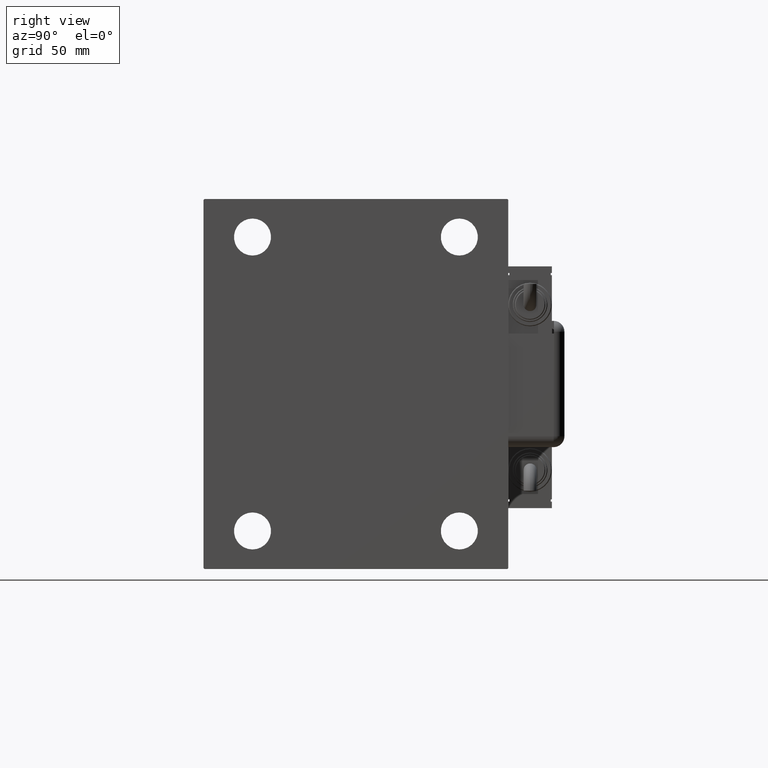
[diagram: clean part render]
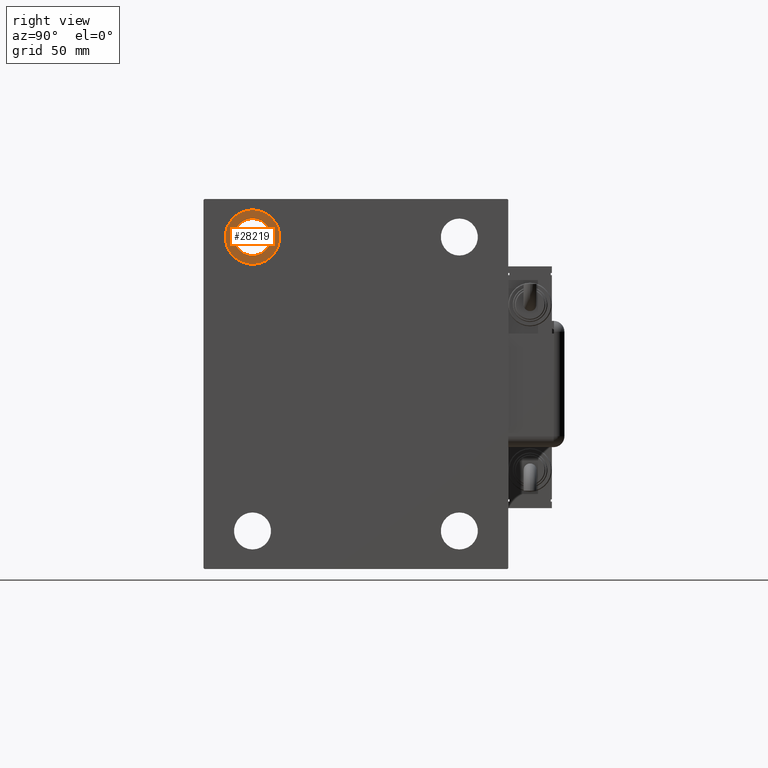
[diagram: same view with one face highlighted and labeled with its STEP entity id]
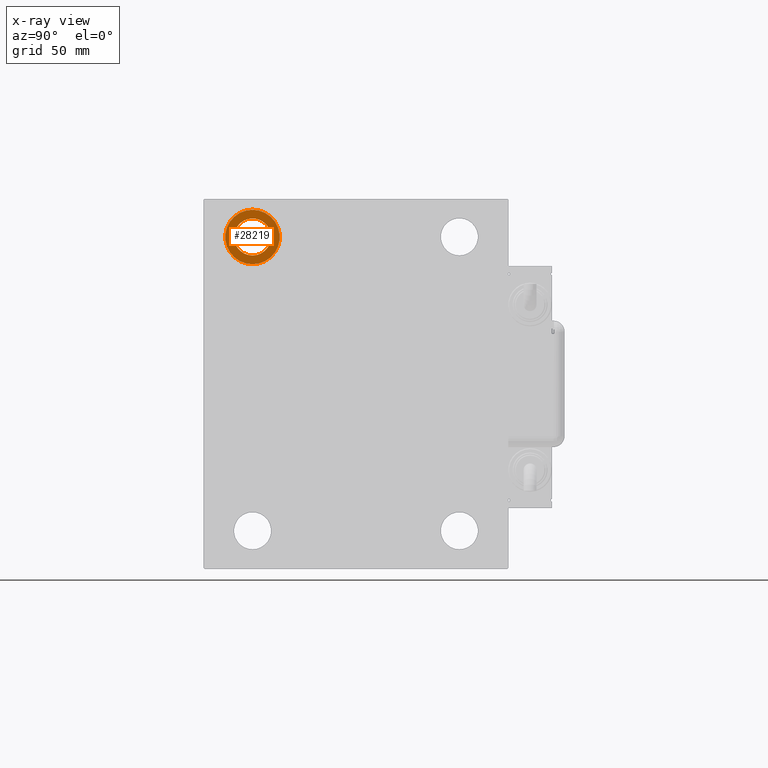
[diagram: x-ray of the same camera — body ghosted, the highlighted face saturated]
A machine part, right view. The second image highlights one B-rep face of the part: STEP entity #28219.
The next image is the same camera in x-ray: the body ghosted, the highlighted face saturated — about 0% of this face is hidden behind the body in this view.
In plain terms, the highlighted planar face has unit normal (1, 0, 0).
Its self-contained STEP definition (entity closure, byte-faithful):
#431 = EDGE_CURVE ( 'NONE', #49588, #57855, #46915, .T. ) ;
#821 = AXIS2_PLACEMENT_3D ( 'NONE', #39165, #57645, #53094 ) ;
#1204 = EDGE_CURVE ( 'NONE', #57855, #49588, #13112, .T. ) ;
#1343 = ORIENTED_EDGE ( 'NONE', *, *, #431, .F. ) ;
#1430 = AXIS2_PLACEMENT_3D ( 'NONE', #8947, #35940, #55004 ) ;
#8947 = CARTESIAN_POINT ( 'NONE',  ( 167.9999999999999716, 0.000000000000000000, 0.000000000000000000 ) ) ;
#10369 = ORIENTED_EDGE ( 'NONE', *, *, #37355, .T. ) ;
#13112 = CIRCLE ( 'NONE', #30525, 12.50000000000001066 ) ;
#13885 = CIRCLE ( 'NONE', #58367, 8.500000000000007105 ) ;
#15671 = CARTESIAN_POINT ( 'NONE',  ( 167.9999999999999716, -47.49999999999997868, 80.00000000000001421 ) ) ;
#16348 = CARTESIAN_POINT ( 'NONE',  ( 167.9999999999999716, -47.49999999999997868, 67.50000000000000000 ) ) ;
#18684 = DIRECTION ( 'NONE',  ( -1.000000000000000000, -0.000000000000000000, -0.000000000000000000 ) ) ;
#20488 = ORIENTED_EDGE ( 'NONE', *, *, #21558, .T. ) ;
#21558 = EDGE_CURVE ( 'NONE', #26608, #24361, #13885, .T. ) ;
#24361 = VERTEX_POINT ( 'NONE', #58811 ) ;
#26608 = VERTEX_POINT ( 'NONE', #47250 ) ;
#28219 = ADVANCED_FACE ( 'NONE', ( #59229, #45901 ), #59827, .T. ) ;
#28800 = DIRECTION ( 'NONE',  ( 0.000000000000000000, 0.000000000000000000, 1.000000000000000000 ) ) ;
#30500 = CARTESIAN_POINT ( 'NONE',  ( 167.9999999999999716, -47.49999999999997868, 67.50000000000000000 ) ) ;
#30525 = AXIS2_PLACEMENT_3D ( 'NONE', #30500, #30804, #28800 ) ;
#30804 = DIRECTION ( 'NONE',  ( -1.000000000000000000, -0.000000000000000000, -0.000000000000000000 ) ) ;
#31349 = EDGE_LOOP ( 'NONE', ( #20488, #10369 ) ) ;
#34813 = DIRECTION ( 'NONE',  ( 0.000000000000000000, 0.000000000000000000, 1.000000000000000000 ) ) ;
#35940 = DIRECTION ( 'NONE',  ( 1.000000000000000000, 0.000000000000000000, -0.000000000000000000 ) ) ;
#37355 = EDGE_CURVE ( 'NONE', #24361, #26608, #37545, .T. ) ;
#37545 = CIRCLE ( 'NONE', #821, 8.500000000000007105 ) ;
#37772 = DIRECTION ( 'NONE',  ( 0.000000000000000000, 0.000000000000000000, -1.000000000000000000 ) ) ;
#39165 = CARTESIAN_POINT ( 'NONE',  ( 167.9999999999999716, -47.49999999999997868, 67.50000000000000000 ) ) ;
#44205 = CARTESIAN_POINT ( 'NONE',  ( 167.9999999999999716, -47.49999999999997868, 55.00000000000000000 ) ) ;
#45655 = CARTESIAN_POINT ( 'NONE',  ( 167.9999999999999716, -47.49999999999997868, 67.50000000000000000 ) ) ;
#45901 = FACE_BOUND ( 'NONE', #31349, .T. ) ;
#46915 = CIRCLE ( 'NONE', #58485, 12.50000000000001066 ) ;
#47250 = CARTESIAN_POINT ( 'NONE',  ( 167.9999999999999716, -47.49999999999997868, 76.00000000000001421 ) ) ;
#48453 = DIRECTION ( 'NONE',  ( -1.000000000000000000, -0.000000000000000000, -0.000000000000000000 ) ) ;
#49588 = VERTEX_POINT ( 'NONE', #44205 ) ;
#52953 = ORIENTED_EDGE ( 'NONE', *, *, #1204, .F. ) ;
#53094 = DIRECTION ( 'NONE',  ( 0.000000000000000000, 0.000000000000000000, -1.000000000000000000 ) ) ;
#55004 = DIRECTION ( 'NONE',  ( 0.000000000000000000, 0.000000000000000000, 1.000000000000000000 ) ) ;
#57555 = EDGE_LOOP ( 'NONE', ( #1343, #52953 ) ) ;
#57645 = DIRECTION ( 'NONE',  ( -1.000000000000000000, -0.000000000000000000, -0.000000000000000000 ) ) ;
#57855 = VERTEX_POINT ( 'NONE', #15671 ) ;
#58367 = AXIS2_PLACEMENT_3D ( 'NONE', #45655, #18684, #37772 ) ;
#58485 = AXIS2_PLACEMENT_3D ( 'NONE', #16348, #48453, #34813 ) ;
#58811 = CARTESIAN_POINT ( 'NONE',  ( 167.9999999999999716, -47.49999999999997868, 59.00000000000000000 ) ) ;
#59229 = FACE_OUTER_BOUND ( 'NONE', #57555, .T. ) ;
#59827 = PLANE ( 'NONE',  #1430 ) ;